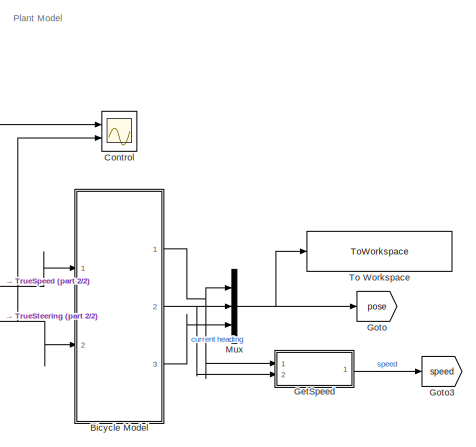
[diagram: root canvas - part 1/2, middle right region]
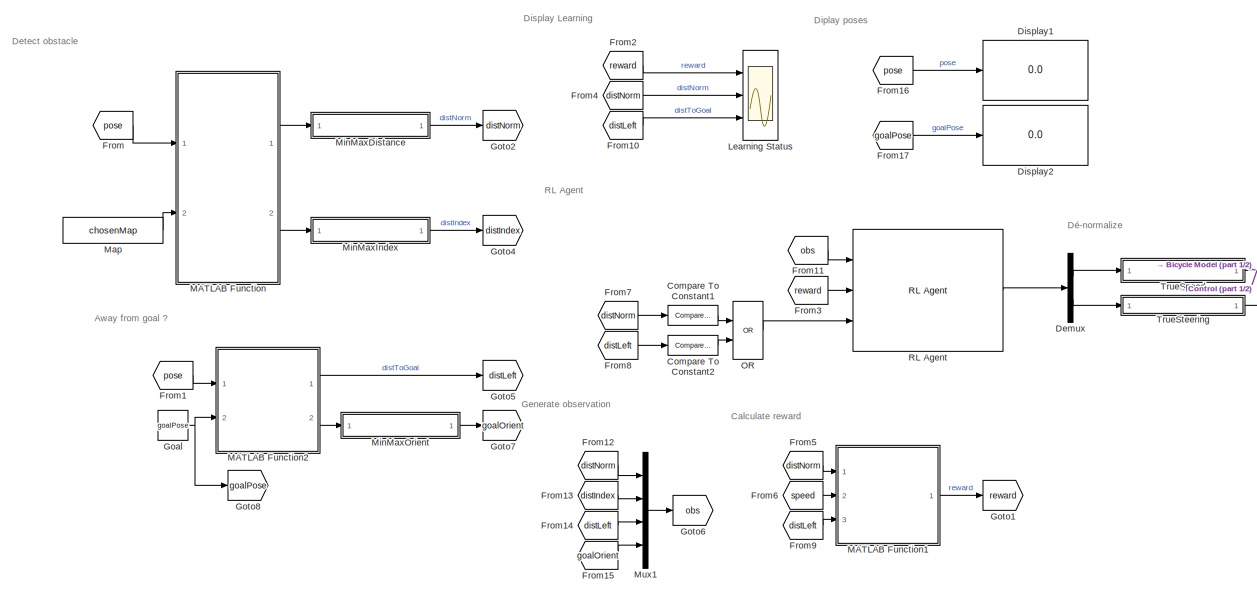
[diagram: root canvas - part 2/2, center side, full height]
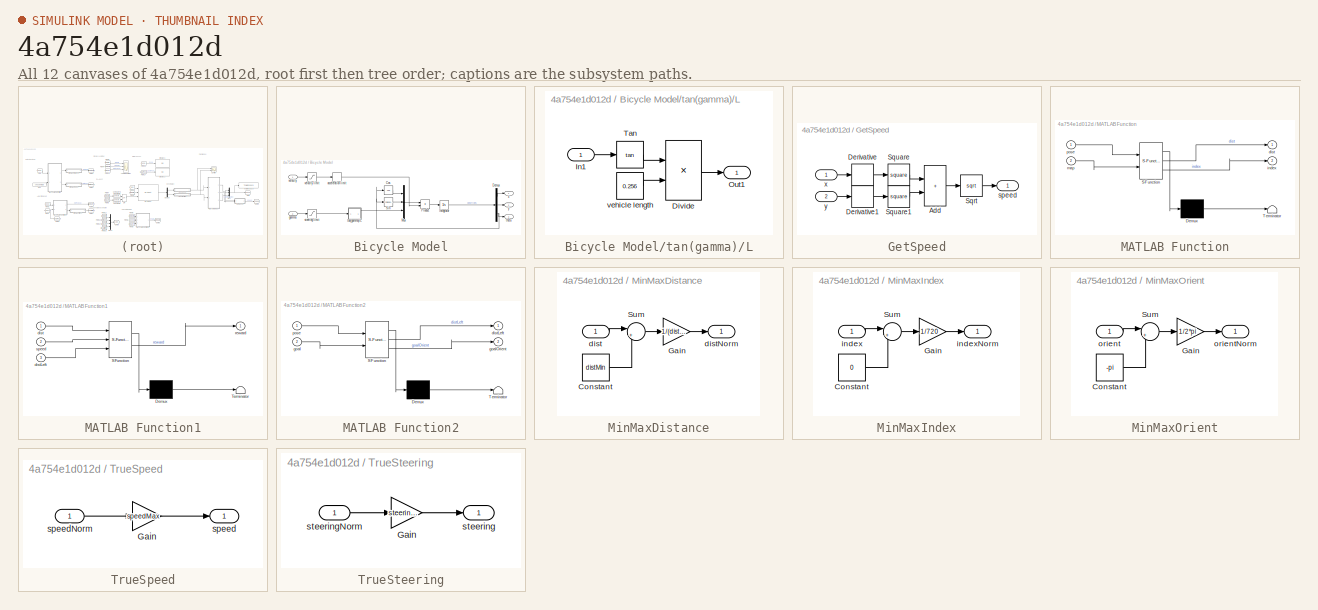
[diagram: thumbnail index - all 12 canvases of the model, root first then tree order]
MODEL slx_4a754e1d012d
KIND model
CONFIG AbsTol = auto
CONFIG EnableMultiTasking = off
CONFIG FixedStep = auto
CONFIG MaxStep = auto
CONFIG MinStep = auto
CONFIG RelTol = 1e-3
CONFIG SampleTimeConstraint = Unconstrained
CONFIG SolverName = VariableStepAuto
CONFIG StartTime = 0.0
CONFIG StopTime = 500
WORKSPACE source: mxarray member
WORKSPACE Sig: Simulink.Signal (value not decoded)
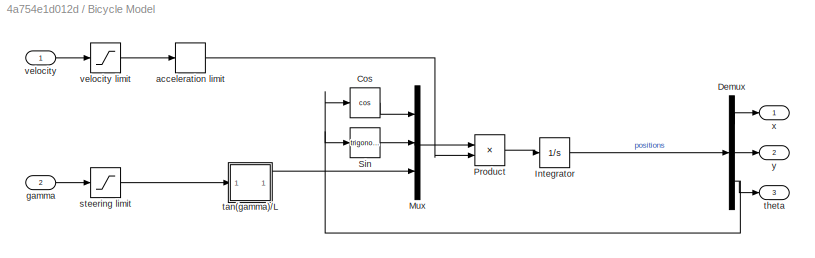
BLOCK [SubSystem] Bicycle Model
  Ports = [2, 3]
  RequestExecContextInheritance = off
BLOCK [Trigonometry] Bicycle Model/Cos
  Operator = cos
  Ports = [1, 1]
BLOCK [Demux] Bicycle Model/Demux
  Outputs = 3
  Ports = [1, 3]
BLOCK [Integrator] Bicycle Model/Integrator
  InitialCondition = startPose
  Ports = [1, 1]
BLOCK [Mux] Bicycle Model/Mux
  DisplayOption = bar
  Inputs = 3
  Ports = [3, 1]
BLOCK [Product] Bicycle Model/Product
  Ports = [2, 1]
BLOCK [Trigonometry] Bicycle Model/Sin
  Ports = [1, 1]
BLOCK [RateLimiter] Bicycle Model/acceleration limit
  RisingSlewLimit = 0.2
  SampleTimeMode = inherited
BLOCK [Inport] Bicycle Model/gamma
  Port = 2
BLOCK [Saturate] Bicycle Model/steering limit
  LowerLimit = -steeringRange
  UpperLimit = steeringRange
BLOCK [SubSystem] Bicycle Model/tan(gamma)//L
  Ports = [1, 1]
  RequestExecContextInheritance = off
BLOCK [Product] Bicycle Model/tan(gamma)//L/Divide
  Inputs = */
  Ports = [2, 1]
BLOCK [Inport] Bicycle Model/tan(gamma)//L/In1
BLOCK [Outport] Bicycle Model/tan(gamma)//L/Out1
BLOCK [Trigonometry] Bicycle Model/tan(gamma)//L/Tan
  Operator = tan
  Ports = [1, 1]
BLOCK [Constant] Bicycle Model/tan(gamma)//L/vehicle length
  Value = 0.256
BLOCK [Outport] Bicycle Model/theta
  Port = 3
BLOCK [Inport] Bicycle Model/velocity
BLOCK [Saturate] Bicycle Model/velocity limit
  LowerLimit = -speedMax
  UpperLimit = speedMax
BLOCK [Outport] Bicycle Model/x
BLOCK [Outport] Bicycle Model/y
  Port = 2
BLOCK [Reference] Compare To Constant1  REF=simulink/Logic and Bit
Operations/Compare
To Constant
  Ports = [1, 1]
  SourceBlock = simulink/Logic and Bit\nOperations/Compare\nTo Constant
  SourceProductBaseCode = SL
  SourceType = Compare To Constant
BLOCK [Reference] Compare To Constant2  REF=simulink/Logic and Bit
Operations/Compare
To Constant
  Ports = [1, 1]
  SourceBlock = simulink/Logic and Bit\nOperations/Compare\nTo Constant
  SourceProductBaseCode = SL
  SourceType = Compare To Constant
BLOCK [Scope] Control
  Floating = off
  NumInputPorts = 2
  Ports = [2]
  ScopeSpecificationString = Simulink.scopes.TimeScopeBlockCfg('CurrentConfiguration', extmgr.ConfigurationSet(extmgr.Configuration('Core','General UI',true),extmgr.Configuration('Core','Source UI',true),extmgr.Configuration('Sources','WiredSimulink',true,'DataLoggingVariableName','ScopeData1'),extmgr.Configuration('Visuals','Time Domain',true,'SerializedDisplays',{struct('MinYLimReal','-1','MaxYLimReal','1','YLabelReal','','...<+1972ch>
BLOCK [Demux] Demux
  Outputs = 2
  Ports = [1, 2]
BLOCK [Display] Display1
  Decimation = 1
  Ports = [1]
BLOCK [Display] Display2
  Decimation = 1
  Ports = [1]
BLOCK [From] From
  GotoTag = pose
BLOCK [From] From1
  GotoTag = pose
BLOCK [From] From10
  GotoTag = distLeft
BLOCK [From] From11
  GotoTag = obs
BLOCK [From] From12
  GotoTag = distNorm
BLOCK [From] From13
  GotoTag = distIndex
BLOCK [From] From14
  GotoTag = distLeft
BLOCK [From] From15
  GotoTag = goalOrient
BLOCK [From] From16
  GotoTag = pose
BLOCK [From] From17
  GotoTag = goalPose
BLOCK [From] From2
  GotoTag = reward
BLOCK [From] From3
  GotoTag = reward
BLOCK [From] From4
  GotoTag = distNorm
BLOCK [From] From5
  GotoTag = distNorm
BLOCK [From] From6
  GotoTag = speed
BLOCK [From] From7
  GotoTag = distNorm
BLOCK [From] From8
  GotoTag = distLeft
BLOCK [From] From9
  GotoTag = distLeft
BLOCK [SubSystem] GetSpeed
  Ports = [2, 1]
  RequestExecContextInheritance = off
BLOCK [Sum] GetSpeed/Add
  IconShape = rectangular
  Ports = [2, 1]
BLOCK [Derivative] GetSpeed/Derivative
BLOCK [Derivative] GetSpeed/Derivative1
BLOCK [Sqrt] GetSpeed/Sqrt
BLOCK [Math] GetSpeed/Square
  Operator = square
  Ports = [1, 1]
BLOCK [Math] GetSpeed/Square1
  Operator = square
  Ports = [1, 1]
BLOCK [Outport] GetSpeed/speed
BLOCK [Inport] GetSpeed/x
BLOCK [Inport] GetSpeed/y
  Port = 2
BLOCK [Constant] Goal
  Value = goalPose
BLOCK [Goto] Goto
  GotoTag = pose
BLOCK [Goto] Goto1
  GotoTag = reward
BLOCK [Goto] Goto2
  GotoTag = distNorm
BLOCK [Goto] Goto3
  GotoTag = speed
BLOCK [Goto] Goto4
  GotoTag = distIndex
BLOCK [Goto] Goto5
  GotoTag = distLeft
BLOCK [Goto] Goto6
  GotoTag = obs
BLOCK [Goto] Goto7
  GotoTag = goalOrient
BLOCK [Goto] Goto8
  GotoTag = goalPose
BLOCK [Scope] Learning Status
  Floating = off
  NumInputPorts = 3
  Ports = [3]
  ScopeSpecificationString = Simulink.scopes.TimeScopeBlockCfg('CurrentConfiguration', extmgr.ConfigurationSet(extmgr.Configuration('Core','General UI',true),extmgr.Configuration('Core','Source UI',true),extmgr.Configuration('Sources','WiredSimulink',true),extmgr.Configuration('Visuals','Time Domain',true,'SerializedDisplays',{struct('MinYLimReal','-11.00000','MaxYLimReal','3.00000','YLabelReal','','MinYLimMag','0.00000','Max...<+2698ch>
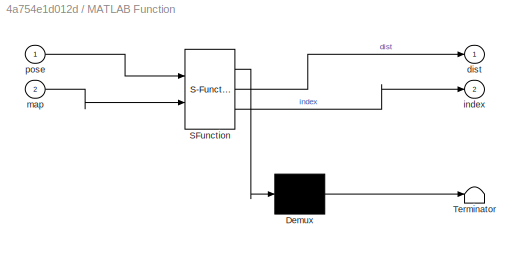
BLOCK [SubSystem] MATLAB Function
  ErrorFcn = Stateflow.Translate.translate
  PermitHierarchicalResolution = ExplicitOnly
  Ports = [2, 2]
  RequestExecContextInheritance = off
  SFBlockType = MATLAB Function
  TreatAsAtomicUnit = on
BLOCK [Demux] MATLAB Function/ Demux 
  Outputs = 1
  Ports = [1, 1]
BLOCK [S-Function] MATLAB Function/ SFunction 
  EnableBusSupport = on
  FunctionName = sf_sfun
  PortCounts = [2 3]
  Ports = [2, 3]
  SFcnIsStateOwnerBlock = off
  SFunctionDeploymentMode = off
  Tag = Stateflow S-Function 2
BLOCK [Terminator] MATLAB Function/ Terminator 
BLOCK [Outport] MATLAB Function/dist
BLOCK [Outport] MATLAB Function/index
  Port = 2
BLOCK [Inport] MATLAB Function/map
  Port = 2
BLOCK [Inport] MATLAB Function/pose
BLOCK [SubSystem] MATLAB Function1
  ErrorFcn = Stateflow.Translate.translate
  PermitHierarchicalResolution = ExplicitOnly
  Ports = [3, 1]
  RequestExecContextInheritance = off
  SFBlockType = MATLAB Function
  TreatAsAtomicUnit = on
BLOCK [Demux] MATLAB Function1/ Demux 
  Outputs = 1
  Ports = [1, 1]
BLOCK [S-Function] MATLAB Function1/ SFunction 
  EnableBusSupport = on
  FunctionName = sf_sfun
  PortCounts = [3 2]
  Ports = [3, 2]
  SFcnIsStateOwnerBlock = off
  SFunctionDeploymentMode = off
  Tag = Stateflow S-Function 1
BLOCK [Terminator] MATLAB Function1/ Terminator 
BLOCK [Inport] MATLAB Function1/dist
BLOCK [Inport] MATLAB Function1/distLeft
  Port = 3
BLOCK [Outport] MATLAB Function1/reward
BLOCK [Inport] MATLAB Function1/speed
  Port = 2
BLOCK [SubSystem] MATLAB Function2
  ErrorFcn = Stateflow.Translate.translate
  PermitHierarchicalResolution = ExplicitOnly
  Ports = [2, 2]
  RequestExecContextInheritance = off
  SFBlockType = MATLAB Function
  TreatAsAtomicUnit = on
BLOCK [Demux] MATLAB Function2/ Demux 
  Outputs = 1
  Ports = [1, 1]
BLOCK [S-Function] MATLAB Function2/ SFunction 
  EnableBusSupport = on
  FunctionName = sf_sfun
  PortCounts = [2 3]
  Ports = [2, 3]
  SFcnIsStateOwnerBlock = off
  SFunctionDeploymentMode = off
  Tag = Stateflow S-Function 3
BLOCK [Terminator] MATLAB Function2/ Terminator 
BLOCK [Outport] MATLAB Function2/distLeft
BLOCK [Inport] MATLAB Function2/goal
  Port = 2
BLOCK [Outport] MATLAB Function2/goalOrient
  Port = 2
BLOCK [Inport] MATLAB Function2/pose
BLOCK [Constant] Map
  Value = chosenMap
BLOCK [SubSystem] MinMaxDistance
  Ports = [1, 1]
  RequestExecContextInheritance = off
BLOCK [Constant] MinMaxDistance/Constant
  Value = distMin
BLOCK [Gain] MinMaxDistance/Gain
  Gain = 1/(distMax-distMin)
BLOCK [Sum] MinMaxDistance/Sum
  Inputs = |+-
  Ports = [2, 1]
BLOCK [Inport] MinMaxDistance/dist
BLOCK [Outport] MinMaxDistance/distNorm
BLOCK [SubSystem] MinMaxIndex
  Ports = [1, 1]
  RequestExecContextInheritance = off
BLOCK [Constant] MinMaxIndex/Constant
  Value = 0
BLOCK [Gain] MinMaxIndex/Gain
  Gain = 1/720
BLOCK [Sum] MinMaxIndex/Sum
  Inputs = |+-
  Ports = [2, 1]
BLOCK [Inport] MinMaxIndex/index
BLOCK [Outport] MinMaxIndex/indexNorm
BLOCK [SubSystem] MinMaxOrient
  Ports = [1, 1]
  RequestExecContextInheritance = off
BLOCK [Constant] MinMaxOrient/Constant
  Value = -pi
BLOCK [Gain] MinMaxOrient/Gain
  Gain = 1/2*pi
BLOCK [Sum] MinMaxOrient/Sum
  Inputs = |+-
  Ports = [2, 1]
BLOCK [Inport] MinMaxOrient/orient
BLOCK [Outport] MinMaxOrient/orientNorm
BLOCK [Mux] Mux
  DisplayOption = bar
  Inputs = 3
  Ports = [3, 1]
BLOCK [Mux] Mux1
  DisplayOption = bar
  Ports = [4, 1]
BLOCK [Logic] OR
  AllPortsSameDT = off
  IconShape = distinctive
  Operator = OR
  OutDataTypeStr = boolean
  Ports = [2, 1]
BLOCK [Reference] RL Agent  REF=rllib/RL Agent
  Ports = [3, 1]
  SourceBlock = rllib/RL Agent
  SourceProductBaseCode = RL
  SourceType = RL Agent
BLOCK [ToWorkspace] To Workspace
  FixptAsFi = on
  MaxDataPoints = inf
  Ports = [1]
  SampleTime = -1
  VariableName = BicyclePose
BLOCK [SubSystem] TrueSpeed
  Ports = [1, 1]
  RequestExecContextInheritance = off
BLOCK [Gain] TrueSpeed/Gain
  Gain = speedMax
BLOCK [Outport] TrueSpeed/speed
BLOCK [Inport] TrueSpeed/speedNorm
BLOCK [SubSystem] TrueSteering
  Ports = [1, 1]
  RequestExecContextInheritance = off
BLOCK [Gain] TrueSteering/Gain
  Gain = steeringRange
BLOCK [Outport] TrueSteering/steering
BLOCK [Inport] TrueSteering/steeringNorm
ANNOTATION (root): Away from goal ?
ANNOTATION (root): Calculate reward
ANNOTATION (root): Detect obstacle
ANNOTATION (root): Diplay poses
ANNOTATION (root): Display Learning
ANNOTATION (root): Dé-normalize
ANNOTATION (root): Generate observation
ANNOTATION (root): Plant Model
ANNOTATION (root): RL Agent
LINE Bicycle Model/Cos:1 -> Bicycle Model/Mux:1
LINE Bicycle Model/Demux:1 -> Bicycle Model/x:1
LINE Bicycle Model/Demux:2 -> Bicycle Model/y:1
NET Bicycle Model/Demux:3 -> Bicycle Model/Cos:1, Bicycle Model/Sin:1, Bicycle Model/theta:1
LINE Bicycle Model/Integrator:1 -> Bicycle Model/Demux:1
LINE Bicycle Model/Mux:1 -> Bicycle Model/Product:1
LINE Bicycle Model/Product:1 -> Bicycle Model/Integrator:1
LINE Bicycle Model/Sin:1 -> Bicycle Model/Mux:2
LINE Bicycle Model/acceleration limit:1 -> Bicycle Model/Product:2
LINE Bicycle Model/gamma:1 -> Bicycle Model/steering limit:1
LINE Bicycle Model/steering limit:1 -> Bicycle Model/tan(gamma)//L:1
LINE Bicycle Model/tan(gamma)//L/Divide:1 -> Bicycle Model/tan(gamma)//L/Out1:1
LINE Bicycle Model/tan(gamma)//L/In1:1 -> Bicycle Model/tan(gamma)//L/Tan:1
LINE Bicycle Model/tan(gamma)//L/Tan:1 -> Bicycle Model/tan(gamma)//L/Divide:1
LINE Bicycle Model/tan(gamma)//L/vehicle length:1 -> Bicycle Model/tan(gamma)//L/Divide:2
LINE Bicycle Model/tan(gamma)//L:1 -> Bicycle Model/Mux:3
LINE Bicycle Model/velocity limit:1 -> Bicycle Model/acceleration limit:1
LINE Bicycle Model/velocity:1 -> Bicycle Model/velocity limit:1
NET Bicycle Model:1 -> GetSpeed:1, Mux:1
NET Bicycle Model:2 -> GetSpeed:2, Mux:2
LINE Bicycle Model:3 -> Mux:3
LINE Compare To Constant1:1 -> OR:1
LINE Compare To Constant2:1 -> OR:2
LINE Demux:1 -> TrueSpeed:1
LINE Demux:2 -> TrueSteering:1
LINE From10:1 -> Learning Status:3
LINE From11:1 -> RL Agent:1
LINE From12:1 -> Mux1:1
LINE From13:1 -> Mux1:2
LINE From14:1 -> Mux1:3
LINE From15:1 -> Mux1:4
LINE From16:1 -> Display1:1
LINE From17:1 -> Display2:1
LINE From1:1 -> MATLAB Function2:1
LINE From2:1 -> Learning Status:1
LINE From3:1 -> RL Agent:2
LINE From4:1 -> Learning Status:2
LINE From5:1 -> MATLAB Function1:1
LINE From6:1 -> MATLAB Function1:2
LINE From7:1 -> Compare To Constant1:1
LINE From8:1 -> Compare To Constant2:1
LINE From9:1 -> MATLAB Function1:3
LINE From:1 -> MATLAB Function:1
LINE GetSpeed/Add:1 -> GetSpeed/Sqrt:1
LINE GetSpeed/Derivative1:1 -> GetSpeed/Square1:1
LINE GetSpeed/Derivative:1 -> GetSpeed/Square:1
LINE GetSpeed/Sqrt:1 -> GetSpeed/speed:1
LINE GetSpeed/Square1:1 -> GetSpeed/Add:2
LINE GetSpeed/Square:1 -> GetSpeed/Add:1
LINE GetSpeed/x:1 -> GetSpeed/Derivative:1
LINE GetSpeed/y:1 -> GetSpeed/Derivative1:1
LINE GetSpeed:1 -> Goto3:1
NET Goal:1 -> Goto8:1, MATLAB Function2:2
LINE MATLAB Function1:1 -> Goto1:1
LINE MATLAB Function2:1 -> Goto5:1
LINE MATLAB Function2:2 -> MinMaxOrient:1
LINE MATLAB Function:1 -> MinMaxDistance:1
LINE MATLAB Function:2 -> MinMaxIndex:1
LINE Map:1 -> MATLAB Function:2
LINE MinMaxDistance/Constant:1 -> MinMaxDistance/Sum:2
LINE MinMaxDistance/Gain:1 -> MinMaxDistance/distNorm:1
LINE MinMaxDistance/Sum:1 -> MinMaxDistance/Gain:1
LINE MinMaxDistance/dist:1 -> MinMaxDistance/Sum:1
LINE MinMaxDistance:1 -> Goto2:1
LINE MinMaxIndex/Constant:1 -> MinMaxIndex/Sum:2
LINE MinMaxIndex/Gain:1 -> MinMaxIndex/indexNorm:1
LINE MinMaxIndex/Sum:1 -> MinMaxIndex/Gain:1
LINE MinMaxIndex/index:1 -> MinMaxIndex/Sum:1
LINE MinMaxIndex:1 -> Goto4:1
LINE MinMaxOrient/Constant:1 -> MinMaxOrient/Sum:2
LINE MinMaxOrient/Gain:1 -> MinMaxOrient/orientNorm:1
LINE MinMaxOrient/Sum:1 -> MinMaxOrient/Gain:1
LINE MinMaxOrient/orient:1 -> MinMaxOrient/Sum:1
LINE MinMaxOrient:1 -> Goto7:1
LINE Mux1:1 -> Goto6:1
NET Mux:1 -> Goto:1, To Workspace:1
LINE OR:1 -> RL Agent:3
LINE RL Agent:1 -> Demux:1
LINE TrueSpeed/Gain:1 -> TrueSpeed/speed:1
LINE TrueSpeed/speedNorm:1 -> TrueSpeed/Gain:1
NET TrueSpeed:1 -> Bicycle Model:1, Control:1
LINE TrueSteering/Gain:1 -> TrueSteering/steering:1
LINE TrueSteering/steeringNorm:1 -> TrueSteering/Gain:1
NET TrueSteering:1 -> Bicycle Model:2, Control:2
note: NET lines group one-source signal fan-out (src -> all destinations, sorted); 1:1 wires keep LINE
CHART MATLAB Function1 states=1 transitions=1
  STATE_LABEL 'eML_blk_kernel()'
  STATE_LABEL "SCRIPT:\nfunction reward = calcRew(dist, speed, distLeft)\n    % Fonction de calcul de recompense\n    % coefficients a tuner\n    if distLeft <= 1.1\n        reward = 15;\n    elseif dist < 0.1\n        % Touche un mur : punition\n        reward = -10;\n    elseif dist < 0.3\n        % Proche d'un mur : tout faire pour le pas le toucher quelle que\n        % soit la vitesse\n        reward = dist;\n    else\n ...<+124ch>"
CHART MATLAB Function states=1 transitions=1
  STATE_LABEL 'eML_blk_kernel()'
  STATE_LABEL "SCRIPT:\nfunction [dist, index]  = distMin(pose, map)\n    % Trouve la distance minimale dans un cône devant le véhicule\n    % alpha : angle du cône\n    binaryMap = binaryOccupancyMap(map);\n    maxrange = 3;\n    angles = [];\n    step = deg2rad(0.5);\n    \n    % Le LIDAR de la Qcar a une détection d'objets à 360° tous les 0.5°\n    for i = 0:step:2*pi-step\n        angles = [angles i]; % 720 points\n    ...<+418ch>"
CHART MATLAB Function2 states=1 transitions=1
  STATE_LABEL 'eML_blk_kernel()'
  STATE_LABEL 'SCRIPT:\nfunction [distLeft,goalOrient] = euclidDist(pose, goal)\n    relativePose = goal - pose;\n\ndistLeft = sqrt(relativePose(1).^2+relativePose(2).^2);\ngoalOrient = atan2(relativePose(2),relativePose(1));\n'
CHART  states=0 transitions=0
CHART  states=0 transitions=0
CHART  states=0 transitions=0
